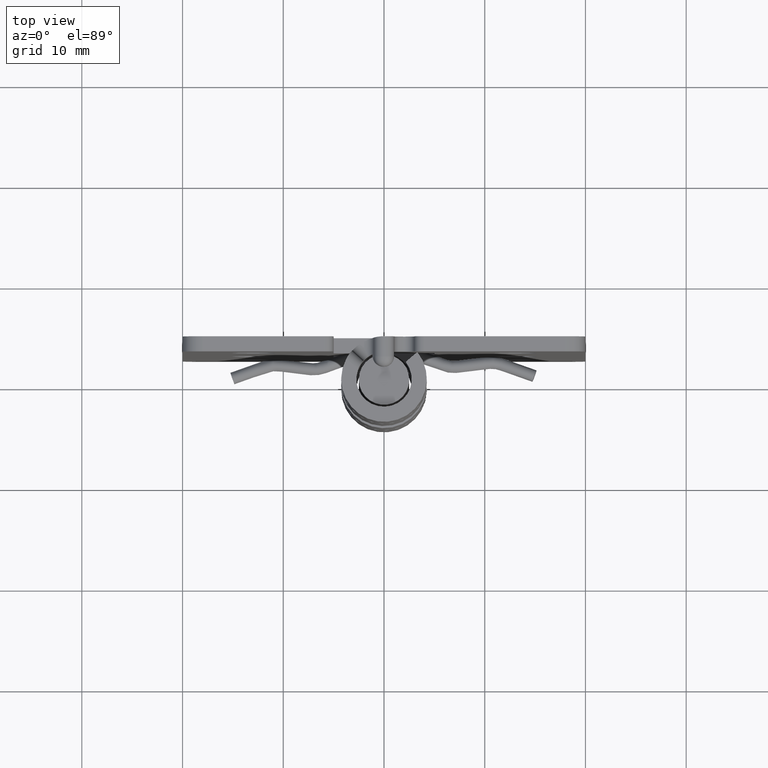
[diagram: clean part render]
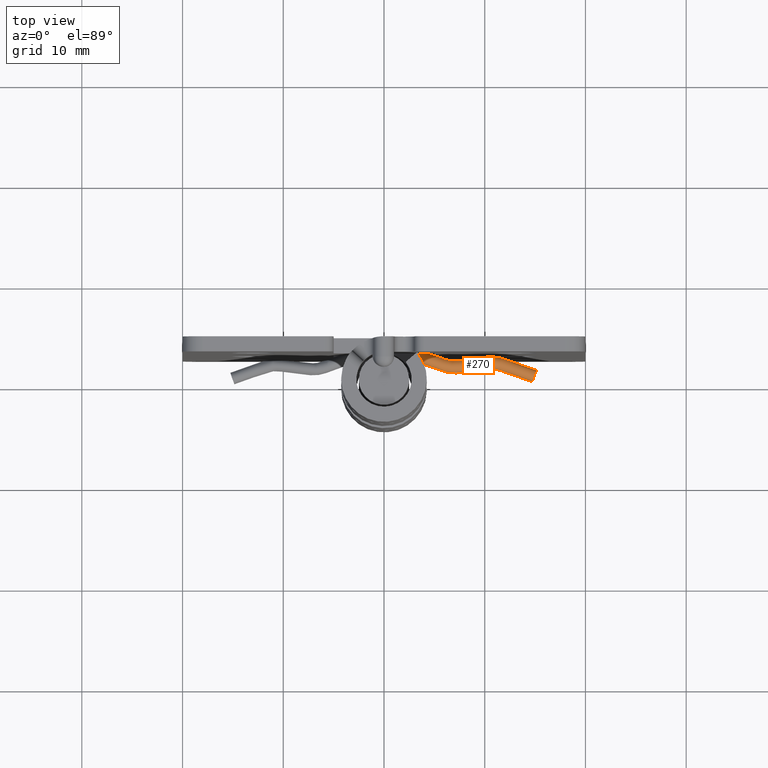
[diagram: same view with one face highlighted and labeled with its STEP entity id]
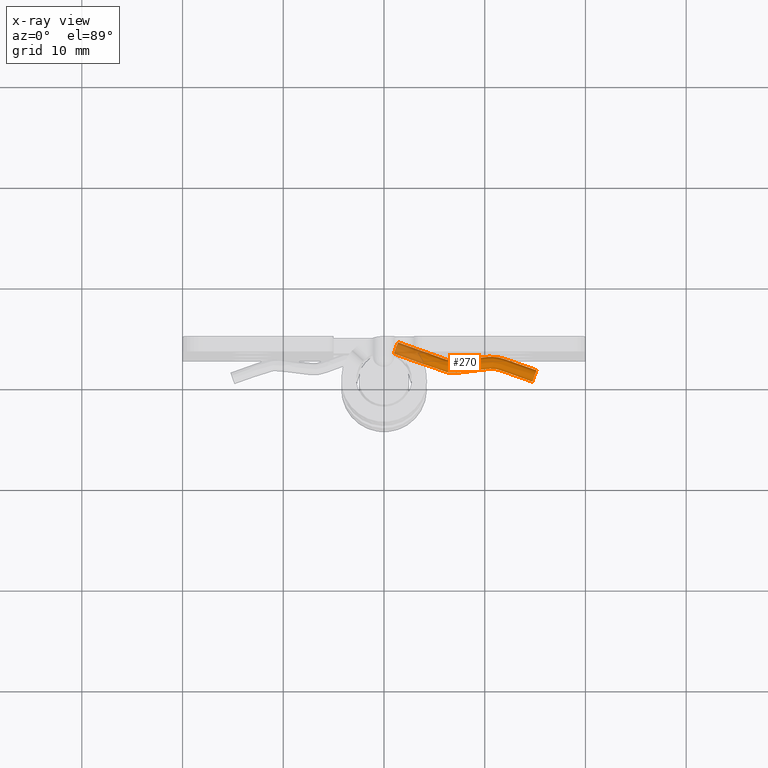
[diagram: x-ray of the same camera — body ghosted, the highlighted face saturated]
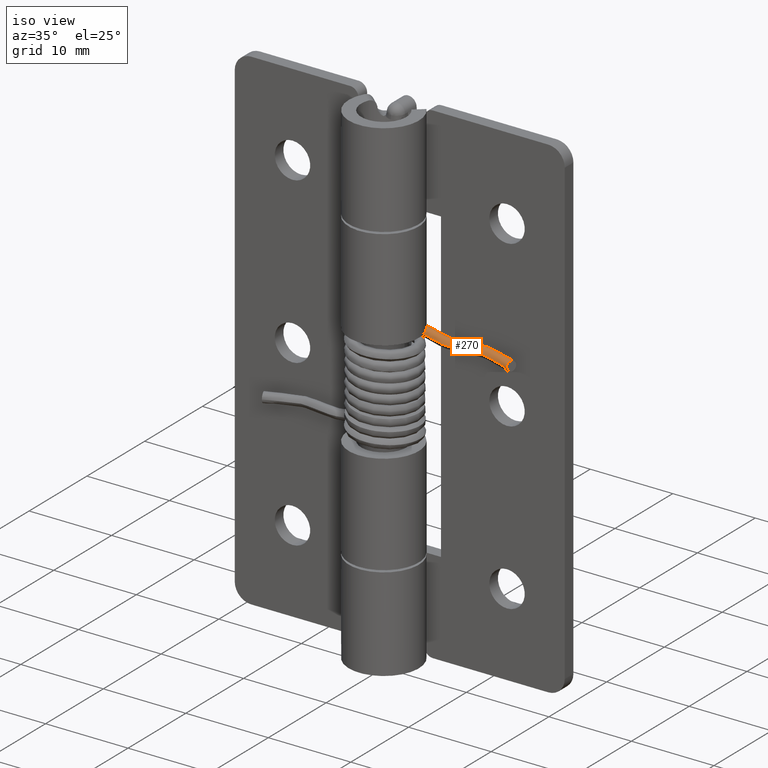
[diagram: same view with one face highlighted and labeled with its STEP entity id]
A machine part, top view. The second image highlights one B-rep face of the part: STEP entity #270.
The next image is the same camera in x-ray: the body ghosted, the highlighted face saturated — about 19% of this face is hidden behind the body in this view.
A second angle (iso view) of the same face is appended — the face is thin or edge-on in the first view.
In plain terms, the highlighted face is a freeform B-spline surface patch.
Its self-contained STEP definition (entity closure, byte-faithful):
#270=ADVANCED_FACE('',(#1127),#1126,.T.);
#1126=( BOUNDED_SURFACE() B_SPLINE_SURFACE( 3,3,((#1880,#1881,#1882,#1883,#1884,#1885,#1886,#1887,#1888,#1889,#1890,#1891,#1892,#1893,#1894,#1895,#1896,#1897,#1898,#1899,#1900,#1901,#1902,#1903,#1904,#1905,#1906,#1907,#1908,#1909,#1910,#1911,#1912,#1913,#1914,#1915,#1916,#1917,#1918,#1919,#1920,#1921,#1922,#1923),(#1924,#1925,#1926,#1927,#1928,#1929,#1930,#1931,#1932,#1933,#1934,#1935,#1936,#1937,#1938,#1939,#1940,#1941,#1942,#1943,#1944,#1945,#1946,#1947,#1948,#1949,#1950,#1951,#1952,#1953,#1954,#1955,#1956,#1957,#1958,#1959,#1960,#1961,#1962,#1963,#1964,#1965,#1966,#1967),(#1968,#1969,#1970,#1971,#1972,#1973,#1974,#1975,#1976,#1977,#1978,#1979,#1980,#1981,#1982,#1983,#1984,#1985,#1986,#1987,#1988,#1989,#1990,#1991,#1992,#1993,#1994,#1995,#1996,#1997,#1998,#1999,#2000,#2001,#2002,#2003,#2004,#2005,#2006,#2007,#2008,#2009,#2010,#2011),(#2012,#2013,#2014,#2015,#2016,#2017,#2018,#2019,#2020,#2021,#2022,#2023,#2024,#2025,#2026,#2027,#2028,#2029,#2030,#2031,#2032,#2033,#2034,#2035,#2036,#2037,#2038,#2039,#2040,#2041,#2042,#2043,#2044,#2045,#2046,#2047,#2048,#2049,#2050,#2051,#2052,#2053,#2054,#2055),(#2056,#2057,#2058,#2059,#2060,#2061,#2062,#2063,#2064,#2065,#2066,#2067,#2068,#2069,#2070,#2071,#2072,#2073,#2074,#2075,#2076,#2077,#2078,#2079,#2080,#2081,#2082,#2083,#2084,#2085,#2086,#2087,#2088,#2089,#2090,#2091,#2092,#2093,#2094,#2095,#2096,#2097,#2098,#2099),(#2100,#2101,#2102,#2103,#2104,#2105,#2106,#2107,#2108,#2109,#2110,#2111,#2112,#2113,#2114,#2115,#2116,#2117,#2118,#2119,#2120,#2121,#2122,#2123,#2124,#2125,#2126,#2127,#2128,#2129,#2130,#2131,#2132,#2133,#2134,#2135,#2136,#2137,#2138,#2139,#2140,#2141,#2142,#2143)), .UNSPECIFIED.,.F.,.F.,.F.) B_SPLINE_SURFACE_WITH_KNOTS((4,2,4),(4,2,2,2,2,2,2,2,2,2,2,2,2,2,2,2,2,2,2,2,2,4),(0.00000000000E+00,5.00000000000E-01,1.00000000000E+00),(0.00000000000E+00,1.21332214022E-01,1.81920607286E-01,2.12285392908E-01,2.42650178531E-01,2.73243687474E-01,3.03837196416E-01,3.39518774908E-01,3.57359564154E-01,3.75200353401E-01,4.46563510385E-01,4.99573046292E-01,5.26077814246E-01,5.52582582199E-01,5.89744380637E-01,6.26906179074E-01,6.61062740698E-01,6.95219302322E-01,8.25834092779E-01,9.12911854944E-01,9.78225947396E-01,1.00000000000E+00), .UNSPECIFIED. ) GEOMETRIC_REPRESENTATION_ITEM() RATIONAL_B_SPLINE_SURFACE(((1.00000000000E+00,1.00000000000E+00,1.00000000000E+00,1.00000000000E+00,1.00000000000E+00,1.00000000000E+00,1.00000000000E+00,1.00000000000E+00,1.00000000000E+00,1.00000000000E+00,1.00000000000E+00,1.00000000000E+00,1.00000000000E+00,1.00000000000E+00,1.00000000000E+00,1.00000000000E+00,1.00000000000E+00,1.00000000000E+00,1.00000000000E+00,1.00000000000E+00,1.00000000000E+00,1.00000000000E+00,1.00000000000E+00,1.00000000000E+00,1.00000000000E+00,1.00000000000E+00,1.00000000000E+00,1.00000000000E+00,1.00000000000E+00,1.00000000000E+00,1.00000000000E+00,1.00000000000E+00,1.00000000000E+00,1.00000000000E+00,1.00000000000E+00,1.00000000000E+00,1.00000000000E+00,1.00000000000E+00,1.00000000000E+00,1.00000000000E+00,1.00000000000E+00,1.00000000000E+00,1.00000000000E+00,1.00000000000E+00),(1.00000000000E+00,1.00000000000E+00,1.00000000000E+00,1.00000000000E+00,1.00000000000E+00,1.00000000000E+00,1.00000000000E+00,1.00000000000E+00,1.00000000000E+00,1.00000000000E+00,1.00000000000E+00,1.00000000000E+00,1.00000000000E+00,1.00000000000E+00,1.00000000000E+00,1.00000000000E+00,1.00000000000E+00,1.00000000000E+00,1.00000000000E+00,1.00000000000E+00,1.00000000000E+00,1.00000000000E+00,1.00000000000E+00,1.00000000000E+00,1.00000000000E+00,1.00000000000E+00,1.00000000000E+00,1.00000000000E+00,1.00000000000E+00,1.00000000000E+00,1.00000000000E+00,1.00000000000E+00,1.00000000000E+00,1.00000000000E+00,1.00000000000E+00,1.00000000000E+00,1.00000000000E+00,1.00000000000E+00,1.00000000000E+00,1.00000000000E+00,1.00000000000E+00,1.00000000000E+00,1.00000000000E+00,1.00000000000E+00),(1.00000000000E+00,1.00000000000E+00,1.00000000000E+00,1.00000000000E+00,1.00000000000E+00,1.00000000000E+00,1.00000000000E+00,1.00000000000E+00,1.00000000000E+00,1.00000000000E+00,1.00000000000E+00,1.00000000000E+00,1.00000000000E+00,1.00000000000E+00,1.00000000000E+00,1.00000000000E+00,1.00000000000E+00,1.00000000000E+00,1.00000000000E+00,1.00000000000E+00,1.00000000000E+00,1.00000000000E+00,1.00000000000E+00,1.00000000000E+00,1.00000000000E+00,1.00000000000E+00,1.00000000000E+00,1.00000000000E+00,1.00000000000E+00,1.00000000000E+00,1.00000000000E+00,1.00000000000E+00,1.00000000000E+00,1.00000000000E+00,1.00000000000E+00,1.00000000000E+00,1.00000000000E+00,1.00000000000E+00,1.00000000000E+00,1.00000000000E+00,1.00000000000E+00,1.00000000000E+00,1.00000000000E+00,1.00000000000E+00),(1.00000000000E+00,1.00000000000E+00,1.00000000000E+00,1.00000000000E+00,1.00000000000E+00,1.00000000000E+00,1.00000000000E+00,1.00000000000E+00,1.00000000000E+00,1.00000000000E+00,1.00000000000E+00,1.00000000000E+00,1.00000000000E+00,1.00000000000E+00,1.00000000000E+00,1.00000000000E+00,1.00000000000E+00,1.00000000000E+00,1.00000000000E+00,1.00000000000E+00,1.00000000000E+00,1.00000000000E+00,1.00000000000E+00,1.00000000000E+00,1.00000000000E+00,1.00000000000E+00,1.00000000000E+00,1.00000000000E+00,1.00000000000E+00,1.00000000000E+00,1.00000000000E+00,1.00000000000E+00,1.00000000000E+00,1.00000000000E+00,1.00000000000E+00,1.00000000000E+00,1.00000000000E+00,1.00000000000E+00,1.00000000000E+00,1.00000000000E+00,1.00000000000E+00,1.00000000000E+00,1.00000000000E+00,1.00000000000E+00),(1.00000000000E+00,1.00000000000E+00,1.00000000000E+00,1.00000000000E+00,1.00000000000E+00,1.00000000000E+00,1.00000000000E+00,1.00000000000E+00,1.00000000000E+00,1.00000000000E+00,1.00000000000E+00,1.00000000000E+00,1.00000000000E+00,1.00000000000E+00,1.00000000000E+00,1.00000000000E+00,1.00000000000E+00,1.00000000000E+00,1.00000000000E+00,1.00000000000E+00,1.00000000000E+00,1.00000000000E+00,1.00000000000E+00,1.00000000000E+00,1.00000000000E+00,1.00000000000E+00,1.00000000000E+00,1.00000000000E+00,1.00000000000E+00,1.00000000000E+00,1.00000000000E+00,1.00000000000E+00,1.00000000000E+00,1.00000000000E+00,1.00000000000E+00,1.00000000000E+00,1.00000000000E+00,1.00000000000E+00,1.00000000000E+00,1.00000000000E+00,1.00000000000E+00,1.00000000000E+00,1.00000000000E+00,1.00000000000E+00),(1.00000000000E+00,1.00000000000E+00,1.00000000000E+00,1.00000000000E+00,1.00000000000E+00,1.00000000000E+00,1.00000000000E+00,1.00000000000E+00,1.00000000000E+00,1.00000000000E+00,1.00000000000E+00,1.00000000000E+00,1.00000000000E+00,1.00000000000E+00,1.00000000000E+00,1.00000000000E+00,1.00000000000E+00,1.00000000000E+00,1.00000000000E+00,1.00000000000E+00,1.00000000000E+00,1.00000000000E+00,1.00000000000E+00,1.00000000000E+00,1.00000000000E+00,1.00000000000E+00,1.00000000000E+00,1.00000000000E+00,1.00000000000E+00,1.00000000000E+00,1.00000000000E+00,1.00000000000E+00,1.00000000000E+00,1.00000000000E+00,1.00000000000E+00,1.00000000000E+00,1.00000000000E+00,1.00000000000E+00,1.00000000000E+00,1.00000000000E+00,1.00000000000E+00,1.00000000000E+00,1.00000000000E+00,1.00000000000E+00))) REPRESENTATION_ITEM('') SURFACE() );
#1127=FACE_OUTER_BOUND('',#2144,.T.);
#1880=CARTESIAN_POINT('',(1.47350762657E+01,5.39879206064E+00,5.83308007899E-02));
#1881=CARTESIAN_POINT('',(1.41894686768E+01,5.38772227663E+00,-1.34759539082E-01));
#1882=CARTESIAN_POINT('',(1.36438611413E+01,5.37663570737E+00,-3.27849860047E-01));
#1883=CARTESIAN_POINT('',(1.28257997018E+01,5.36003036611E+00,-6.17361524811E-01));
#1884=CARTESIAN_POINT('',(1.25526914577E+01,5.35449960595E+00,-7.14014439359E-01));
#1885=CARTESIAN_POINT('',(1.21431001226E+01,5.34621766987E+00,-8.58968673368E-01));
#1886=CARTESIAN_POINT('',(1.20064806799E+01,5.34345432569E+00,-9.07318247585E-01));
#1887=CARTESIAN_POINT('',(1.17335579001E+01,5.33791837045E+00,-1.00390552639E+00));
#1888=CARTESIAN_POINT('',(1.15833909822E+01,5.33483427468E+00,-1.05753246010E+00));
#1889=CARTESIAN_POINT('',(1.13385503803E+01,5.32988229401E+00,-1.14321200297E+00));
#1890=CARTESIAN_POINT('',(1.12394591543E+01,5.32843948759E+00,-1.16795609075E+00));
#1891=CARTESIAN_POINT('',(1.10133156242E+01,5.32591629886E+00,-1.21100752096E+00));
#1892=CARTESIAN_POINT('',(1.08989097624E+01,5.32512302851E+00,-1.22439214566E+00));
#1893=CARTESIAN_POINT('',(1.06479380841E+01,5.32446974981E+00,-1.23542089489E+00));
#1894=CARTESIAN_POINT('',(1.05113940314E+01,5.32480003546E+00,-1.22988827961E+00));
#1895=CARTESIAN_POINT('',(1.03088886177E+01,5.32631109453E+00,-1.20425641639E+00));
#1896=CARTESIAN_POINT('',(1.02104417692E+01,5.32702226868E+00,-1.19215951717E+00));
#1897=CARTESIAN_POINT('',(1.00413526508E+01,5.32825112756E+00,-1.17118852717E+00));
#1898=CARTESIAN_POINT('',(9.95678627414E+00,5.32886398593E+00,-1.16070032631E+00));
#1899=CARTESIAN_POINT('',(9.53443966649E+00,5.33191752514E+00,-1.10831950744E+00));
#1900=CARTESIAN_POINT('',(9.19656239305E+00,5.33433726937E+00,-1.06641485392E+00));
#1901=CARTESIAN_POINT('',(8.60770529321E+00,5.33854475230E+00,-9.93382854785E-01));
#1902=CARTESIAN_POINT('',(8.35672536289E+00,5.34033258523E+00,-9.62255496279E-01));
#1903=CARTESIAN_POINT('',(7.98025549994E+00,5.34300929498E+00,-9.15564462555E-01));
#1904=CARTESIAN_POINT('',(7.85464372718E+00,5.34390154414E+00,-8.99985676321E-01));
#1905=CARTESIAN_POINT('',(7.60350922970E+00,5.34568418897E+00,-8.68839147885E-01));
#1906=CARTESIAN_POINT('',(7.49101433980E+00,5.34650542015E+00,-8.54481034486E-01));
#1907=CARTESIAN_POINT('',(7.15886180799E+00,5.34880482702E+00,-8.14261929882E-01));
#1908=CARTESIAN_POINT('',(6.92885803509E+00,5.34925801746E+00,-8.06329508177E-01));
#1909=CARTESIAN_POINT('',(6.50709900271E+00,5.34785386108E+00,-8.30895954714E-01));
#1910=CARTESIAN_POINT('',(6.29804551103E+00,5.34609193055E+00,-8.61735639871E-01));
#1911=CARTESIAN_POINT('',(5.90613855529E+00,5.34075239578E+00,-9.54989997390E-01));
#1912=CARTESIAN_POINT('',(5.71705026055E+00,5.33690416217E+00,-1.02206614866E+00));
#1913=CARTESIAN_POINT('',(5.41052944898E+00,5.33053496074E+00,-1.13254141482E+00));
#1914=CARTESIAN_POINT('',(5.25686966524E+00,5.32732389853E+00,-1.18792299045E+00));
#1915=CARTESIAN_POINT('',(4.51745990652E+00,5.31161768229E+00,-1.45441872846E+00));
#1916=CARTESIAN_POINT('',(3.93132875294E+00,5.29788614329E+00,-1.66567027403E+00));
#1917=CARTESIAN_POINT('',(2.95450336078E+00,5.27089713510E+00,-2.01773460741E+00));
#1918=CARTESIAN_POINT('',(2.56381885488E+00,5.25892226870E+00,-2.15854388738E+00));
#1919=CARTESIAN_POINT('',(1.88023171842E+00,5.23419336538E+00,-2.40492021157E+00));
#1920=CARTESIAN_POINT('',(1.58726373179E+00,5.22392932319E+00,-2.51051081122E+00));
#1921=CARTESIAN_POINT('',(1.19673238177E+00,5.20392783043E+00,-2.65126489123E+00));
#1922=CARTESIAN_POINT('',(1.09910427526E+00,5.19811859717E+00,-2.68645170611E+00));
#1923=CARTESIAN_POINT('',(1.00152533158E+00,5.19191732194E+00,-2.72162080187E+00));
#1924=CARTESIAN_POINT('',(1.47256455854E+01,5.71274121315E+00,5.17706244082E-02));
#1925=CARTESIAN_POINT('',(1.41800373065E+01,5.70167131785E+00,-1.41319959659E-01));
#1926=CARTESIAN_POINT('',(1.36344171018E+01,5.69058435967E+00,-3.34414764241E-01));
#1927=CARTESIAN_POINT('',(1.28163709781E+01,5.67397959191E+00,-6.23921008778E-01));
#1928=CARTESIAN_POINT('',(1.25432768433E+01,5.66844935943E+00,-7.20568930061E-01));
#1929=CARTESIAN_POINT('',(1.21336897291E+01,5.66016758107E+00,-8.65521670243E-01));
#1930=CARTESIAN_POINT('',(1.19970629063E+01,5.65740396125E+00,-9.13873856321E-01));
#1931=CARTESIAN_POINT('',(1.17241192976E+01,5.65186722649E+00,-1.01046850644E+00));
#1932=CARTESIAN_POINT('',(1.15736492477E+01,5.64876893961E+00,-1.06433646848E+00));
#1933=CARTESIAN_POINT('',(1.13293457854E+01,5.64384276802E+00,-1.14955741033E+00));
#1934=CARTESIAN_POINT('',(1.12310949177E+01,5.64243621846E+00,-1.17366947450E+00));
#1935=CARTESIAN_POINT('',(1.10061675285E+01,5.63995562107E+00,-1.21598336685E+00));
#1936=CARTESIAN_POINT('',(1.08924120376E+01,5.63918156972E+00,-1.22904033191E+00));
#1937=CARTESIAN_POINT('',(1.06429260568E+01,5.63856423681E+00,-1.23946120613E+00));
#1938=CARTESIAN_POINT('',(1.05072263392E+01,5.63891009940E+00,-1.23366679962E+00));
#1939=CARTESIAN_POINT('',(1.03059751822E+01,5.64043770483E+00,-1.20775103917E+00));
#1940=CARTESIAN_POINT('',(1.02071743900E+01,5.64114423540E+00,-1.19573139127E+00));
#1941=CARTESIAN_POINT('',(1.00380767453E+01,5.64237301750E+00,-1.17475934382E+00));
#1942=CARTESIAN_POINT('',(9.95350644404E+00,5.64298584044E+00,-1.16427065620E+00));
#1943=CARTESIAN_POINT('',(9.53114192836E+00,5.64603921771E+00,-1.11188761633E+00));
#1944=CARTESIAN_POINT('',(9.19325699218E+00,5.64845889189E+00,-1.06998201245E+00));
#1945=CARTESIAN_POINT('',(8.60439163840E+00,5.65266629947E+00,-9.96948989627E-01));
#1946=CARTESIAN_POINT('',(8.35340714519E+00,5.65445409065E+00,-9.65821065216E-01));
#1947=CARTESIAN_POINT('',(7.97693302129E+00,5.65713076135E+00,-9.19129503035E-01));
#1948=CARTESIAN_POINT('',(7.85132002698E+00,5.65802299931E+00,-9.03550565300E-01));
#1949=CARTESIAN_POINT('',(7.60018348788E+00,5.65980562540E+00,-8.72403783657E-01));
#1950=CARTESIAN_POINT('',(7.48800098798E+00,5.66063099171E+00,-8.57973083028E-01));
#1951=CARTESIAN_POINT('',(7.15509461345E+00,5.66292043392E+00,-8.17927909986E-01));
#1952=CARTESIAN_POINT('',(6.92385066819E+00,5.66335268603E+00,-8.10361916907E-01));
#1953=CARTESIAN_POINT('',(6.50049843571E+00,5.66190960789E+00,-8.35609263273E-01));
#1954=CARTESIAN_POINT('',(6.29067790475E+00,5.66012417582E+00,-8.66859855280E-01));
#1955=CARTESIAN_POINT('',(5.89738236259E+00,5.65473274718E+00,-9.61018470673E-01));
#1956=CARTESIAN_POINT('',(5.70754887524E+00,5.65084967890E+00,-1.02869794290E+00));
#1957=CARTESIAN_POINT('',(5.40098680565E+00,5.64447891163E+00,-1.13918807915E+00));
#1958=CARTESIAN_POINT('',(5.24728967213E+00,5.64126643360E+00,-1.19458311626E+00));
#1959=CARTESIAN_POINT('',(4.50756372762E+00,5.62554807663E+00,-1.46119281296E+00));
#1960=CARTESIAN_POINT('',(3.92062566012E+00,5.61178443014E+00,-1.67273518391E+00));
#1961=CARTESIAN_POINT('',(2.94262836087E+00,5.58474298528E+00,-2.02522189235E+00));
#1962=CARTESIAN_POINT('',(2.55093827888E+00,5.57272059962E+00,-2.16639359890E+00));
#1963=CARTESIAN_POINT('',(1.86581227367E+00,5.54790977147E+00,-2.41332455732E+00));
#1964=CARTESIAN_POINT('',(1.57307040752E+00,5.53768043746E+00,-2.51883365934E+00));
#1965=CARTESIAN_POINT('',(1.17778236769E+00,5.51735692829E+00,-2.66130213051E+00));
#1966=CARTESIAN_POINT('',(1.07840411902E+00,5.51141466885E+00,-2.69711972612E+00));
#1967=CARTESIAN_POINT('',(9.80252448246E-01,5.50516683110E+00,-2.73249524238E+00));
#1968=CARTESIAN_POINT('',(1.48153482918E+01,5.99573470966E+00,-2.22597661972E-01));
#1969=CARTESIAN_POINT('',(1.42697393899E+01,5.98466477181E+00,-4.15688466482E-01));
#1970=CARTESIAN_POINT('',(1.37241077662E+01,5.97357754133E+00,-6.08787312267E-01));
#1971=CARTESIAN_POINT('',(1.29060754480E+01,5.95697313454E+00,-8.98288671017E-01));
#1972=CARTESIAN_POINT('',(1.26329940313E+01,5.95144323401E+00,-9.94932091376E-01));
#1973=CARTESIAN_POINT('',(1.22234107220E+01,5.94316155483E+00,-1.13988348502E+00));
#1974=CARTESIAN_POINT('',(1.20867772466E+01,5.94039776172E+00,-1.18823802543E+00));
#1975=CARTESIAN_POINT('',(1.18138148629E+01,5.93486053643E+00,-1.28483932005E+00));
#1976=CARTESIAN_POINT('',(1.16697454894E+01,5.93189057889E+00,-1.33648446237E+00));
#1977=CARTESIAN_POINT('',(1.14125280940E+01,5.92670509344E+00,-1.42619056651E+00));
#1978=CARTESIAN_POINT('',(1.12954952411E+01,5.92497878118E+00,-1.45581159832E+00));
#1979=CARTESIAN_POINT('',(1.10448089242E+01,5.92220833790E+00,-1.50307590552E+00));
#1980=CARTESIAN_POINT('',(1.09180252397E+01,5.92134265035E+00,-1.51767949645E+00));
#1981=CARTESIAN_POINT('',(1.06400241462E+01,5.92064816060E+00,-1.52940304633E+00));
#1982=CARTESIAN_POINT('',(1.04887383299E+01,5.92103020871E+00,-1.52300127685E+00));
#1983=CARTESIAN_POINT('',(1.02645178232E+01,5.92272683103E+00,-1.49421835948E+00));
#1984=CARTESIAN_POINT('',(1.01720327316E+01,5.92338703995E+00,-1.48298374427E+00));
#1985=CARTESIAN_POINT('',(1.00029274260E+01,5.92461583509E+00,-1.46201074668E+00));
#1986=CARTESIAN_POINT('',(9.91835359839E+00,5.92522866396E+00,-1.45152162172E+00));
#1987=CARTESIAN_POINT('',(9.49597299208E+00,5.92828206800E+00,-1.39913658623E+00));
#1988=CARTESIAN_POINT('',(9.15808117083E+00,5.93070175297E+00,-1.35723012844E+00));
#1989=CARTESIAN_POINT('',(8.56920840075E+00,5.93490917225E+00,-1.28419618582E+00));
#1990=CARTESIAN_POINT('',(8.31821980771E+00,5.93669696982E+00,-1.25306775294E+00));
#1991=CARTESIAN_POINT('',(7.94174185529E+00,5.93937364642E+00,-1.20637571593E+00));
#1992=CARTESIAN_POINT('',(7.81612776339E+00,5.94026588607E+00,-1.19079664207E+00));
#1993=CARTESIAN_POINT('',(7.56498938988E+00,5.94204851497E+00,-1.15964963292E+00));
#1994=CARTESIAN_POINT('',(7.44690499727E+00,5.94291762294E+00,-1.14445378650E+00));
#1995=CARTESIAN_POINT('',(7.12817233350E+00,5.94510199893E+00,-1.10624616942E+00));
#1996=CARTESIAN_POINT('',(6.92081593915E+00,5.94543963339E+00,-1.10033564953E+00));
#1997=CARTESIAN_POINT('',(6.52950043874E+00,5.94408361309E+00,-1.12405984095E+00));
#1998=CARTESIAN_POINT('',(6.33562435732E+00,5.94242287480E+00,-1.15312802826E+00));
#1999=CARTESIAN_POINT('',(5.97205863076E+00,5.93741730164E+00,-1.24054653571E+00));
#2000=CARTESIAN_POINT('',(5.79873749483E+00,5.93385975576E+00,-1.30255882658E+00));
#2001=CARTESIAN_POINT('',(5.49213823266E+00,5.92748799806E+00,-1.41306236765E+00));
#2002=CARTESIAN_POINT('',(5.33840742972E+00,5.92427462495E+00,-1.46846953979E+00));
#2003=CARTESIAN_POINT('',(4.59839645415E+00,5.90854855085E+00,-1.73518196649E+00));
#2004=CARTESIAN_POINT('',(4.01073097013E+00,5.89476419717E+00,-1.94698651061E+00));
#2005=CARTESIAN_POINT('',(3.03167716814E+00,5.86768744676E+00,-2.29985400044E+00));
#2006=CARTESIAN_POINT('',(2.63908051206E+00,5.85563249118E+00,-2.44135245157E+00));
#2007=CARTESIAN_POINT('',(1.95256706125E+00,5.83076352581E+00,-2.68878346877E+00));
#2008=CARTESIAN_POINT('',(1.66002927012E+00,5.82056316303E+00,-2.79421901871E+00));
#2009=CARTESIAN_POINT('',(1.26045197358E+00,5.79999796706E+00,-2.93823341029E+00));
#2010=CARTESIAN_POINT('',(1.15949546633E+00,5.79395336934E+00,-2.97461983689E+00));
#2011=CARTESIAN_POINT('',(1.06082724845E+00,5.78766971770E+00,-3.01018152543E+00));
#2012=CARTESIAN_POINT('',(1.50313889407E+01,5.98989630154E+00,-8.12577769298E-01));
#2013=CARTESIAN_POINT('',(1.44857800497E+01,5.97882649277E+00,-1.00566856998E+00));
#2014=CARTESIAN_POINT('',(1.39401486636E+01,5.96773944159E+00,-1.19876733167E+00));
#2015=CARTESIAN_POINT('',(1.31221160606E+01,5.95113468126E+00,-1.48826879122E+00));
#2016=CARTESIAN_POINT('',(1.28490343815E+01,5.94560445506E+00,-1.58491230444E+00));
#2017=CARTESIAN_POINT('',(1.24394509937E+01,5.93732267845E+00,-1.72986372587E+00));
#2018=CARTESIAN_POINT('',(1.23028176555E+01,5.93455905568E+00,-1.77821821769E+00));
#2019=CARTESIAN_POINT('',(1.20298556592E+01,5.92902231118E+00,-1.87481937524E+00));
#2020=CARTESIAN_POINT('',(1.19004621455E+01,5.92636282198E+00,-1.92109638750E+00));
#2021=CARTESIAN_POINT('',(1.16137838121E+01,5.92055570968E+00,-2.02157871738E+00));
#2022=CARTESIAN_POINT('',(1.14537847712E+01,5.91805399985E+00,-2.06457328964E+00));
#2023=CARTESIAN_POINT('',(1.11440443912E+01,5.91456125150E+00,-2.12419438750E+00));
#2024=CARTESIAN_POINT('',(1.09873221450E+01,5.91345569651E+00,-2.14285300101E+00));
#2025=CARTESIAN_POINT('',(1.06436693893E+01,5.91251971351E+00,-2.15865576705E+00));
#2026=CARTESIAN_POINT('',(1.04564344440E+01,5.91295014869E+00,-2.15144250995E+00));
#2027=CARTESIAN_POINT('',(1.01792155312E+01,5.91498520138E+00,-2.11692496893E+00));
#2028=CARTESIAN_POINT('',(1.01013211340E+01,5.91555287590E+00,-2.10726146442E+00));
#2029=CARTESIAN_POINT('',(9.93221604109E+00,5.91678185326E+00,-2.08628849321E+00));
#2030=CARTESIAN_POINT('',(9.84764231132E+00,5.91739476601E+00,-2.07579938038E+00));
#2031=CARTESIAN_POINT('',(9.42526215161E+00,5.92044855280E+00,-2.02341440028E+00));
#2032=CARTESIAN_POINT('',(9.08737052144E+00,5.92286840157E+00,-1.98150796619E+00));
#2033=CARTESIAN_POINT('',(8.49849795719E+00,5.92707599728E+00,-1.90847404911E+00));
#2034=CARTESIAN_POINT('',(8.24750947794E+00,5.92886389238E+00,-1.87734563033E+00));
#2035=CARTESIAN_POINT('',(7.87103163176E+00,5.93154066007E+00,-1.83065360650E+00));
#2036=CARTESIAN_POINT('',(7.74541757032E+00,5.93243292583E+00,-1.81507453642E+00));
#2037=CARTESIAN_POINT('',(7.49427924772E+00,5.93421559837E+00,-1.78392753358E+00));
#2038=CARTESIAN_POINT('',(7.36259687674E+00,5.93517258646E+00,-1.76719496250E+00));
#2039=CARTESIAN_POINT('',(7.07652772767E+00,5.93714594129E+00,-1.73267869130E+00));
#2040=CARTESIAN_POINT('',(6.92415990752E+00,5.93731746938E+00,-1.72967427934E+00));
#2041=CARTESIAN_POINT('',(6.60645209434E+00,5.93623065810E+00,-1.74868856021E+00));
#2042=CARTESIAN_POINT('',(6.44915825606E+00,5.93489101756E+00,-1.77213769833E+00));
#2043=CARTESIAN_POINT('',(6.15372005936E+00,5.93083739728E+00,-1.84293197552E+00));
#2044=CARTESIAN_POINT('',(6.01818580222E+00,5.92806506519E+00,-1.89128035496E+00));
#2045=CARTESIAN_POINT('',(5.71158730152E+00,5.92169426206E+00,-2.00178362160E+00));
#2046=CARTESIAN_POINT('',(5.55785718793E+00,5.91848175305E+00,-2.05719054528E+00));
#2047=CARTESIAN_POINT('',(4.81785204518E+00,5.90276299709E+00,-2.32390086973E+00));
#2048=CARTESIAN_POINT('',(4.23020142422E+00,5.88899734105E+00,-2.53570005696E+00));
#2049=CARTESIAN_POINT('',(3.25116909332E+00,5.86194785735E+00,-2.88855980825E+00));
#2050=CARTESIAN_POINT('',(2.85859081083E+00,5.84991634698E+00,-3.03005163722E+00));
#2051=CARTESIAN_POINT('',(2.17210529503E+00,5.82508343744E+00,-3.27747258617E+00));
#2052=CARTESIAN_POINT('',(1.87956384883E+00,5.81487734117E+00,-3.38290945346E+00));
#2053=CARTESIAN_POINT('',(1.48007153649E+00,5.79442491612E+00,-3.52689321530E+00));
#2054=CARTESIAN_POINT('',(1.37914607575E+00,5.78842142817E+00,-3.56326845222E+00));
#2055=CARTESIAN_POINT('',(1.28048786943E+00,5.78215216605E+00,-3.59882653242E+00));
#2056=CARTESIAN_POINT('',(1.51382528317E+01,5.70159067501E+00,-1.07500838047E+00));
#2057=CARTESIAN_POINT('',(1.45926445734E+01,5.69052102624E+00,-1.26809895723E+00));
#2058=CARTESIAN_POINT('',(1.40470248225E+01,5.67943441048E+00,-1.46119360120E+00));
#2059=CARTESIAN_POINT('',(1.32289781548E+01,5.66282896751E+00,-1.75070003825E+00));
#2060=CARTESIAN_POINT('',(1.29558835189E+01,5.65729811304E+00,-1.84734813689E+00));
#2061=CARTESIAN_POINT('',(1.25462962548E+01,5.64901614861E+00,-1.99230093013E+00));
#2062=CARTESIAN_POINT('',(1.24096696941E+01,5.64625285412E+00,-2.04065302343E+00));
#2063=CARTESIAN_POINT('',(1.21367268253E+01,5.64071703760E+00,-2.13724741174E+00));
#2064=CARTESIAN_POINT('',(1.20142856030E+01,5.63821170157E+00,-2.18086300057E+00));
#2065=CARTESIAN_POINT('',(1.17137158936E+01,5.63209831015E+00,-2.28666501756E+00));
#2066=CARTESIAN_POINT('',(1.15334056517E+01,5.62921086031E+00,-2.33631866257E+00));
#2067=CARTESIAN_POINT('',(1.11956933098E+01,5.62535076184E+00,-2.40223228667E+00));
#2068=CARTESIAN_POINT('',(1.10247593779E+01,5.62411859745E+00,-2.42303377441E+00));
#2069=CARTESIAN_POINT('',(1.06498879583E+01,5.62304004641E+00,-2.44124537760E+00));
#2070=CARTESIAN_POINT('',(1.04455304618E+01,5.62347832147E+00,-2.43390114392E+00));
#2071=CARTESIAN_POINT('',(1.01430598051E+01,5.62565228131E+00,-2.39703305904E+00));
#2072=CARTESIAN_POINT('',(1.00721251865E+01,5.62618208419E+00,-2.38801401157E+00));
#2073=CARTESIAN_POINT('',(9.90302794795E+00,5.62741121431E+00,-2.36704201449E+00));
#2074=CARTESIAN_POINT('',(9.81845783360E+00,5.62802419746E+00,-2.35655335006E+00));
#2075=CARTESIAN_POINT('',(9.39609417087E+00,5.63107830572E+00,-2.30417041596E+00));
#2076=CARTESIAN_POINT('',(9.05820959963E+00,5.63349829274E+00,-2.26226485734E+00));
#2077=CARTESIAN_POINT('',(8.46934463895E+00,5.63770603727E+00,-2.18923188328E+00));
#2078=CARTESIAN_POINT('',(8.21836036305E+00,5.63949401473E+00,-2.15810398582E+00));
#2079=CARTESIAN_POINT('',(7.84188644208E+00,5.64217085938E+00,-2.11141244880E+00));
#2080=CARTESIAN_POINT('',(7.71627350594E+00,5.64306314722E+00,-2.09583351829E+00));
#2081=CARTESIAN_POINT('',(7.46513706407E+00,5.64484585666E+00,-2.06468674870E+00));
#2082=CARTESIAN_POINT('',(7.32698433849E+00,5.64583906164E+00,-2.04732112017E+00));
#2083=CARTESIAN_POINT('',(7.05646068181E+00,5.64772548312E+00,-2.01432589843E+00));
#2084=CARTESIAN_POINT('',(6.93023717734E+00,5.64784049544E+00,-2.01231016266E+00));
#2085=CARTESIAN_POINT('',(6.64746527212E+00,5.64691156864E+00,-2.02856224247E+00));
#2086=CARTESIAN_POINT('',(6.50751167907E+00,5.64573938809E+00,-2.04908124104E+00));
#2087=CARTESIAN_POINT('',(6.24433013456E+00,5.64216605554E+00,-2.11148991538E+00));
#2088=CARTESIAN_POINT('',(6.12666426973E+00,5.63978263513E+00,-2.15307323908E+00));
#2089=CARTESIAN_POINT('',(5.82010365442E+00,5.63341369094E+00,-2.26356285117E+00));
#2090=CARTESIAN_POINT('',(5.66640783749E+00,5.63020286324E+00,-2.31895741377E+00));
#2091=CARTESIAN_POINT('',(4.92669303285E+00,5.61449848288E+00,-2.58556309547E+00));
#2092=CARTESIAN_POINT('',(4.33978335169E+00,5.60077054625E+00,-2.79709523550E+00));
#2093=CARTESIAN_POINT('',(3.36182705920E+00,5.57378117699E+00,-3.14956716441E+00));
#2094=CARTESIAN_POINT('',(2.97017206819E+00,5.56180356837E+00,-3.29072622358E+00));
#2095=CARTESIAN_POINT('',(2.28509941492E+00,5.53706160176E+00,-3.53763795306E+00));
#2096=CARTESIAN_POINT('',(1.99235056809E+00,5.52682131760E+00,-3.64314957103E+00));
#2097=CARTESIAN_POINT('',(1.59722483613E+00,5.50671318501E+00,-3.78555954372E+00));
#2098=CARTESIAN_POINT('',(1.49790588255E+00,5.50084943218E+00,-3.82135576838E+00));
#2099=CARTESIAN_POINT('',(1.39977333182E+00,5.49462908368E+00,-3.85672439345E+00));
#2100=CARTESIAN_POINT('',(1.51476835119E+01,5.38764152250E+00,-1.06844820409E+00));
#2101=CARTESIAN_POINT('',(1.46020759437E+01,5.37657198502E+00,-1.26153853665E+00));
#2102=CARTESIAN_POINT('',(1.40564688620E+01,5.36548575818E+00,-1.45462869701E+00));
#2103=CARTESIAN_POINT('',(1.32384068786E+01,5.34887974171E+00,-1.74414055428E+00));
#2104=CARTESIAN_POINT('',(1.29652981334E+01,5.34334835957E+00,-1.84079364619E+00));
#2105=CARTESIAN_POINT('',(1.25557066483E+01,5.33506623741E+00,-1.98574793325E+00));
#2106=CARTESIAN_POINT('',(1.24190874678E+01,5.33230321856E+00,-2.03409741469E+00));
#2107=CARTESIAN_POINT('',(1.21461654278E+01,5.32676818156E+00,-2.13068443168E+00));
#2108=CARTESIAN_POINT('',(1.20240273375E+01,5.32427703665E+00,-2.17405899220E+00));
#2109=CARTESIAN_POINT('',(1.17229204885E+01,5.31813783615E+00,-2.28031961021E+00));
#2110=CARTESIAN_POINT('',(1.15417698882E+01,5.31521412944E+00,-2.33060527882E+00));
#2111=CARTESIAN_POINT('',(1.12028414055E+01,5.31131143964E+00,-2.39725644078E+00));
#2112=CARTESIAN_POINT('',(1.10312571027E+01,5.31006005623E+00,-2.41838558816E+00));
#2113=CARTESIAN_POINT('',(1.06548999857E+01,5.30894555941E+00,-2.43720506636E+00));
#2114=CARTESIAN_POINT('',(1.04496981540E+01,5.30936825754E+00,-2.43012262391E+00));
#2115=CARTESIAN_POINT('',(1.01459732406E+01,5.31152567102E+00,-2.39353843625E+00));
#2116=CARTESIAN_POINT('',(1.00753925657E+01,5.31206011747E+00,-2.38444213747E+00));
#2117=CARTESIAN_POINT('',(9.90630385338E+00,5.31328932437E+00,-2.36347119784E+00));
#2118=CARTESIAN_POINT('',(9.82173766370E+00,5.31390234294E+00,-2.35298302016E+00));
#2119=CARTESIAN_POINT('',(9.39939190900E+00,5.31695661315E+00,-2.30060230708E+00));
#2120=CARTESIAN_POINT('',(9.06151500050E+00,5.31937667021E+00,-2.25869769882E+00));
#2121=CARTESIAN_POINT('',(8.47265829376E+00,5.32358449010E+00,-2.18566574844E+00));
#2122=CARTESIAN_POINT('',(8.22167858075E+00,5.32537250931E+00,-2.15453841688E+00));
#2123=CARTESIAN_POINT('',(7.84520892073E+00,5.32804939301E+00,-2.10784740832E+00));
#2124=CARTESIAN_POINT('',(7.71959720614E+00,5.32894169205E+00,-2.09226862931E+00));
#2125=CARTESIAN_POINT('',(7.46846280589E+00,5.33072442023E+00,-2.06112211293E+00));
#2126=CARTESIAN_POINT('',(7.32999769031E+00,5.33171349008E+00,-2.04382907163E+00));
#2127=CARTESIAN_POINT('',(7.06022787635E+00,5.33360987622E+00,-2.01065991832E+00));
#2128=CARTESIAN_POINT('',(6.93524454424E+00,5.33374582687E+00,-2.00827775393E+00));
#2129=CARTESIAN_POINT('',(6.65406583912E+00,5.33285582183E+00,-2.02384893391E+00));
#2130=CARTESIAN_POINT('',(6.51487928535E+00,5.33170714282E+00,-2.04395702563E+00));
#2131=CARTESIAN_POINT('',(6.25308632726E+00,5.32818570414E+00,-2.10546144210E+00));
#2132=CARTESIAN_POINT('',(6.13616565504E+00,5.32583711840E+00,-2.14644144484E+00));
#2133=CARTESIAN_POINT('',(5.82964629776E+00,5.31946974005E+00,-2.25691618685E+00));
#2134=CARTESIAN_POINT('',(5.67598783060E+00,5.31626032817E+00,-2.31229728795E+00));
#2135=CARTESIAN_POINT('',(4.93658921175E+00,5.30056808853E+00,-2.57878901097E+00));
#2136=CARTESIAN_POINT('',(4.35048644451E+00,5.28687225940E+00,-2.79003032563E+00));
#2137=CARTESIAN_POINT('',(3.37370205911E+00,5.25993532680E+00,-3.14207987947E+00));
#2138=CARTESIAN_POINT('',(2.98305264419E+00,5.24800523744E+00,-3.28287651207E+00));
#2139=CARTESIAN_POINT('',(2.29951885968E+00,5.22334519567E+00,-3.52923360732E+00));
#2140=CARTESIAN_POINT('',(2.00654389237E+00,5.21307020333E+00,-3.63482672292E+00));
#2141=CARTESIAN_POINT('',(1.61617485022E+00,5.19328408715E+00,-3.77552230444E+00));
#2142=CARTESIAN_POINT('',(1.51860603948E+00,5.18755335240E+00,-3.81068774812E+00));
#2143=CARTESIAN_POINT('',(1.42104621515E+00,5.18137957452E+00,-3.84584995294E+00));
#2144=EDGE_LOOP('',(#6198,#6199,#6200,#6201));
#6198=ORIENTED_EDGE('',*,*,#6435,.T.);
#6199=ORIENTED_EDGE('',*,*,#6438,.F.);
#6200=ORIENTED_EDGE('',*,*,#6437,.F.);
#6201=ORIENTED_EDGE('',*,*,#6439,.T.);
#6435=EDGE_CURVE('',#7928,#7920,#7929,.T.);
#6437=EDGE_CURVE('',#7935,#7921,#7942,.T.);
#6438=EDGE_CURVE('',#7921,#7920,#7948,.T.);
#6439=EDGE_CURVE('',#7935,#7928,#7954,.T.);
#7920=VERTEX_POINT('',#8956);
#7921=VERTEX_POINT('',#8957);
#7928=VERTEX_POINT('',#8964);
#7929=(BOUNDED_CURVE() B_SPLINE_CURVE(3,(#8965,#8966,#8967,#8968,#8969,#8970,#8971,#8972,#8973,#8974,#8975,#8976,#8977,#8978,#8979,#8980,#8981,#8982,#8983,#8984,#8985,#8986,#8987,#8988,#8989,#8990,#8991,#8992,#8993,#8994,#8995,#8996,#8997,#8998,#8999,#9000,#9001,#9002,#9003,#9004,#9005,#9006,#9007,#9008),.UNSPECIFIED.,.F.,.F.) B_SPLINE_CURVE_WITH_KNOTS((4,2,2,2,2,2,2,2,2,2,2,2,2,2,2,2,2,2,2,2,2,4),(0.00000000000E+00,1.21332214022E-01,1.81920607286E-01,2.12285392908E-01,2.42650178531E-01,2.73243687474E-01,3.03837196416E-01,3.39518774908E-01,3.57359564154E-01,3.75200353401E-01,4.46563510385E-01,4.99573046292E-01,5.26077814246E-01,5.52582582199E-01,5.89744380637E-01,6.26906179074E-01,6.61062740698E-01,6.95219302322E-01,8.25834092779E-01,9.12911854944E-01,9.78225947396E-01,1.00000000000E+00),.UNSPECIFIED.) CURVE() GEOMETRIC_REPRESENTATION_ITEM() RATIONAL_B_SPLINE_CURVE((1.00000000000E+00,1.00000000000E+00,1.00000000000E+00,1.00000000000E+00,1.00000000000E+00,1.00000000000E+00,1.00000000000E+00,1.00000000000E+00,1.00000000000E+00,1.00000000000E+00,1.00000000000E+00,1.00000000000E+00,1.00000000000E+00,1.00000000000E+00,1.00000000000E+00,1.00000000000E+00,1.00000000000E+00,1.00000000000E+00,1.00000000000E+00,1.00000000000E+00,1.00000000000E+00,1.00000000000E+00,1.00000000000E+00,1.00000000000E+00,1.00000000000E+00,1.00000000000E+00,1.00000000000E+00,1.00000000000E+00,1.00000000000E+00,1.00000000000E+00,1.00000000000E+00,1.00000000000E+00,1.00000000000E+00,1.00000000000E+00,1.00000000000E+00,1.00000000000E+00,1.00000000000E+00,1.00000000000E+00,1.00000000000E+00,1.00000000000E+00,1.00000000000E+00,1.00000000000E+00,1.00000000000E+00,1.00000000000E+00)) REPRESENTATION_ITEM('') );
#7935=VERTEX_POINT('',#9009);
#7942=(BOUNDED_CURVE() B_SPLINE_CURVE(3,(#9016,#9017,#9018,#9019,#9020,#9021,#9022,#9023,#9024,#9025,#9026,#9027,#9028,#9029,#9030,#9031,#9032,#9033,#9034,#9035,#9036,#9037,#9038,#9039,#9040,#9041,#9042,#9043,#9044,#9045,#9046,#9047,#9048,#9049,#9050,#9051,#9052,#9053,#9054,#9055,#9056,#9057,#9058,#9059),.UNSPECIFIED.,.F.,.F.) B_SPLINE_CURVE_WITH_KNOTS((4,2,2,2,2,2,2,2,2,2,2,2,2,2,2,2,2,2,2,2,2,4),(0.00000000000E+00,1.21332214022E-01,1.81920607286E-01,2.12285392908E-01,2.42650178531E-01,2.73243687474E-01,3.03837196416E-01,3.39518774908E-01,3.57359564154E-01,3.75200353401E-01,4.46563510385E-01,4.99573046292E-01,5.26077814246E-01,5.52582582199E-01,5.89744380637E-01,6.26906179074E-01,6.61062740698E-01,6.95219302322E-01,8.25834092779E-01,9.12911854944E-01,9.78225947396E-01,1.00000000000E+00),.UNSPECIFIED.) CURVE() GEOMETRIC_REPRESENTATION_ITEM() RATIONAL_B_SPLINE_CURVE((1.00000000000E+00,1.00000000000E+00,1.00000000000E+00,1.00000000000E+00,1.00000000000E+00,1.00000000000E+00,1.00000000000E+00,1.00000000000E+00,1.00000000000E+00,1.00000000000E+00,1.00000000000E+00,1.00000000000E+00,1.00000000000E+00,1.00000000000E+00,1.00000000000E+00,1.00000000000E+00,1.00000000000E+00,1.00000000000E+00,1.00000000000E+00,1.00000000000E+00,1.00000000000E+00,1.00000000000E+00,1.00000000000E+00,1.00000000000E+00,1.00000000000E+00,1.00000000000E+00,1.00000000000E+00,1.00000000000E+00,1.00000000000E+00,1.00000000000E+00,1.00000000000E+00,1.00000000000E+00,1.00000000000E+00,1.00000000000E+00,1.00000000000E+00,1.00000000000E+00,1.00000000000E+00,1.00000000000E+00,1.00000000000E+00,1.00000000000E+00,1.00000000000E+00,1.00000000000E+00,1.00000000000E+00,1.00000000000E+00)) REPRESENTATION_ITEM('') );
#7948=(BOUNDED_CURVE() B_SPLINE_CURVE(3,(#9060,#9061,#9062,#9063,#9064,#9065),.UNSPECIFIED.,.F.,.F.) B_SPLINE_CURVE_WITH_KNOTS((4,2,4),(5.00000000000E-01,7.50000000000E-01,1.00000000000E+00),.UNSPECIFIED.) CURVE() GEOMETRIC_REPRESENTATION_ITEM() RATIONAL_B_SPLINE_CURVE((1.00000000000E+00,1.00000000000E+00,1.00000000000E+00,1.00000000000E+00,1.00000000000E+00,1.00000000000E+00)) REPRESENTATION_ITEM('') );
#7954=(BOUNDED_CURVE() B_SPLINE_CURVE(3,(#9066,#9067,#9068,#9069,#9070,#9071),.UNSPECIFIED.,.F.,.F.) B_SPLINE_CURVE_WITH_KNOTS((4,2,4),(0.00000000000E+00,5.00000000000E-01,1.00000000000E+00),.UNSPECIFIED.) CURVE() GEOMETRIC_REPRESENTATION_ITEM() RATIONAL_B_SPLINE_CURVE((1.00000000000E+00,1.00000000000E+00,1.00000000000E+00,1.00000000000E+00,1.00000000000E+00,1.00000000000E+00)) REPRESENTATION_ITEM('') );
#8956=CARTESIAN_POINT('',(1.42104621515E+00,5.18137957452E+00,-3.84584995294E+00));
#8957=CARTESIAN_POINT('',(1.00152533158E+00,5.19191732194E+00,-2.72162080187E+00));
#8964=CARTESIAN_POINT('',(1.51476835119E+01,5.38764152250E+00,-1.06844820409E+00));
#8965=CARTESIAN_POINT('',(1.51476835119E+01,5.38764152250E+00,-1.06844820409E+00));
#8966=CARTESIAN_POINT('',(1.46020759437E+01,5.37657198502E+00,-1.26153853665E+00));
#8967=CARTESIAN_POINT('',(1.40564688620E+01,5.36548575818E+00,-1.45462869701E+00));
#8968=CARTESIAN_POINT('',(1.32384068786E+01,5.34887974171E+00,-1.74414055428E+00));
#8969=CARTESIAN_POINT('',(1.29652981334E+01,5.34334835957E+00,-1.84079364619E+00));
#8970=CARTESIAN_POINT('',(1.25557066483E+01,5.33506623741E+00,-1.98574793325E+00));
#8971=CARTESIAN_POINT('',(1.24190874678E+01,5.33230321856E+00,-2.03409741469E+00));
#8972=CARTESIAN_POINT('',(1.21461654278E+01,5.32676818156E+00,-2.13068443168E+00));
#8973=CARTESIAN_POINT('',(1.20240273375E+01,5.32427703665E+00,-2.17405899220E+00));
#8974=CARTESIAN_POINT('',(1.17229204885E+01,5.31813783615E+00,-2.28031961021E+00));
#8975=CARTESIAN_POINT('',(1.15417698882E+01,5.31521412944E+00,-2.33060527882E+00));
#8976=CARTESIAN_POINT('',(1.12028414055E+01,5.31131143964E+00,-2.39725644078E+00));
#8977=CARTESIAN_POINT('',(1.10312571027E+01,5.31006005623E+00,-2.41838558816E+00));
#8978=CARTESIAN_POINT('',(1.06548999857E+01,5.30894555941E+00,-2.43720506636E+00));
#8979=CARTESIAN_POINT('',(1.04496981540E+01,5.30936825754E+00,-2.43012262391E+00));
#8980=CARTESIAN_POINT('',(1.01459732406E+01,5.31152567102E+00,-2.39353843625E+00));
#8981=CARTESIAN_POINT('',(1.00753925657E+01,5.31206011747E+00,-2.38444213747E+00));
#8982=CARTESIAN_POINT('',(9.90630385338E+00,5.31328932437E+00,-2.36347119784E+00));
#8983=CARTESIAN_POINT('',(9.82173766370E+00,5.31390234294E+00,-2.35298302016E+00));
#8984=CARTESIAN_POINT('',(9.39939190900E+00,5.31695661315E+00,-2.30060230708E+00));
#8985=CARTESIAN_POINT('',(9.06151500050E+00,5.31937667021E+00,-2.25869769882E+00));
#8986=CARTESIAN_POINT('',(8.47265829376E+00,5.32358449010E+00,-2.18566574844E+00));
#8987=CARTESIAN_POINT('',(8.22167858075E+00,5.32537250931E+00,-2.15453841688E+00));
#8988=CARTESIAN_POINT('',(7.84520892073E+00,5.32804939301E+00,-2.10784740832E+00));
#8989=CARTESIAN_POINT('',(7.71959720614E+00,5.32894169205E+00,-2.09226862931E+00));
#8990=CARTESIAN_POINT('',(7.46846280589E+00,5.33072442023E+00,-2.06112211293E+00));
#8991=CARTESIAN_POINT('',(7.32999769031E+00,5.33171349008E+00,-2.04382907163E+00));
#8992=CARTESIAN_POINT('',(7.06022787635E+00,5.33360987622E+00,-2.01065991832E+00));
#8993=CARTESIAN_POINT('',(6.93524454424E+00,5.33374582687E+00,-2.00827775393E+00));
#8994=CARTESIAN_POINT('',(6.65406583912E+00,5.33285582183E+00,-2.02384893391E+00));
#8995=CARTESIAN_POINT('',(6.51487928535E+00,5.33170714282E+00,-2.04395702563E+00));
#8996=CARTESIAN_POINT('',(6.25308632726E+00,5.32818570414E+00,-2.10546144210E+00));
#8997=CARTESIAN_POINT('',(6.13616565504E+00,5.32583711840E+00,-2.14644144484E+00));
#8998=CARTESIAN_POINT('',(5.82964629776E+00,5.31946974005E+00,-2.25691618685E+00));
#8999=CARTESIAN_POINT('',(5.67598783060E+00,5.31626032817E+00,-2.31229728795E+00));
#9000=CARTESIAN_POINT('',(4.93658921175E+00,5.30056808853E+00,-2.57878901097E+00));
#9001=CARTESIAN_POINT('',(4.35048644451E+00,5.28687225940E+00,-2.79003032563E+00));
#9002=CARTESIAN_POINT('',(3.37370205911E+00,5.25993532680E+00,-3.14207987947E+00));
#9003=CARTESIAN_POINT('',(2.98305264419E+00,5.24800523744E+00,-3.28287651207E+00));
#9004=CARTESIAN_POINT('',(2.29951885968E+00,5.22334519567E+00,-3.52923360732E+00));
#9005=CARTESIAN_POINT('',(2.00654389237E+00,5.21307020333E+00,-3.63482672292E+00));
#9006=CARTESIAN_POINT('',(1.61617485022E+00,5.19328408715E+00,-3.77552230444E+00));
#9007=CARTESIAN_POINT('',(1.51860603948E+00,5.18755335240E+00,-3.81068774812E+00));
#9008=CARTESIAN_POINT('',(1.42104621515E+00,5.18137957452E+00,-3.84584995294E+00));
#9009=CARTESIAN_POINT('',(1.47350762657E+01,5.39879206064E+00,5.83308007899E-02));
#9016=CARTESIAN_POINT('',(1.47350762657E+01,5.39879206064E+00,5.83308007899E-02));
#9017=CARTESIAN_POINT('',(1.41894686768E+01,5.38772227663E+00,-1.34759539082E-01));
#9018=CARTESIAN_POINT('',(1.36438611413E+01,5.37663570737E+00,-3.27849860047E-01));
#9019=CARTESIAN_POINT('',(1.28257997018E+01,5.36003036611E+00,-6.17361524811E-01));
#9020=CARTESIAN_POINT('',(1.25526914577E+01,5.35449960595E+00,-7.14014439359E-01));
#9021=CARTESIAN_POINT('',(1.21431001226E+01,5.34621766987E+00,-8.58968673368E-01));
#9022=CARTESIAN_POINT('',(1.20064806799E+01,5.34345432569E+00,-9.07318247585E-01));
#9023=CARTESIAN_POINT('',(1.17335579001E+01,5.33791837045E+00,-1.00390552639E+00));
#9024=CARTESIAN_POINT('',(1.15833909822E+01,5.33483427468E+00,-1.05753246010E+00));
#9025=CARTESIAN_POINT('',(1.13385503803E+01,5.32988229401E+00,-1.14321200297E+00));
#9026=CARTESIAN_POINT('',(1.12394591543E+01,5.32843948759E+00,-1.16795609075E+00));
#9027=CARTESIAN_POINT('',(1.10133156242E+01,5.32591629886E+00,-1.21100752096E+00));
#9028=CARTESIAN_POINT('',(1.08989097624E+01,5.32512302851E+00,-1.22439214566E+00));
#9029=CARTESIAN_POINT('',(1.06479380841E+01,5.32446974981E+00,-1.23542089489E+00));
#9030=CARTESIAN_POINT('',(1.05113940314E+01,5.32480003546E+00,-1.22988827961E+00));
#9031=CARTESIAN_POINT('',(1.03088886177E+01,5.32631109453E+00,-1.20425641639E+00));
#9032=CARTESIAN_POINT('',(1.02104417692E+01,5.32702226868E+00,-1.19215951717E+00));
#9033=CARTESIAN_POINT('',(1.00413526508E+01,5.32825112756E+00,-1.17118852717E+00));
#9034=CARTESIAN_POINT('',(9.95678627414E+00,5.32886398593E+00,-1.16070032631E+00));
#9035=CARTESIAN_POINT('',(9.53443966649E+00,5.33191752514E+00,-1.10831950744E+00));
#9036=CARTESIAN_POINT('',(9.19656239305E+00,5.33433726937E+00,-1.06641485392E+00));
#9037=CARTESIAN_POINT('',(8.60770529321E+00,5.33854475230E+00,-9.93382854785E-01));
#9038=CARTESIAN_POINT('',(8.35672536289E+00,5.34033258523E+00,-9.62255496279E-01));
#9039=CARTESIAN_POINT('',(7.98025549994E+00,5.34300929498E+00,-9.15564462555E-01));
#9040=CARTESIAN_POINT('',(7.85464372718E+00,5.34390154414E+00,-8.99985676321E-01));
#9041=CARTESIAN_POINT('',(7.60350922970E+00,5.34568418897E+00,-8.68839147885E-01));
#9042=CARTESIAN_POINT('',(7.49101433980E+00,5.34650542015E+00,-8.54481034486E-01));
#9043=CARTESIAN_POINT('',(7.15886180799E+00,5.34880482702E+00,-8.14261929882E-01));
#9044=CARTESIAN_POINT('',(6.92885803509E+00,5.34925801746E+00,-8.06329508177E-01));
#9045=CARTESIAN_POINT('',(6.50709900271E+00,5.34785386108E+00,-8.30895954714E-01));
#9046=CARTESIAN_POINT('',(6.29804551103E+00,5.34609193055E+00,-8.61735639871E-01));
#9047=CARTESIAN_POINT('',(5.90613855529E+00,5.34075239578E+00,-9.54989997390E-01));
#9048=CARTESIAN_POINT('',(5.71705026055E+00,5.33690416217E+00,-1.02206614866E+00));
#9049=CARTESIAN_POINT('',(5.41052944898E+00,5.33053496074E+00,-1.13254141482E+00));
#9050=CARTESIAN_POINT('',(5.25686966524E+00,5.32732389853E+00,-1.18792299045E+00));
#9051=CARTESIAN_POINT('',(4.51745990652E+00,5.31161768229E+00,-1.45441872846E+00));
#9052=CARTESIAN_POINT('',(3.93132875294E+00,5.29788614329E+00,-1.66567027403E+00));
#9053=CARTESIAN_POINT('',(2.95450336078E+00,5.27089713510E+00,-2.01773460741E+00));
#9054=CARTESIAN_POINT('',(2.56381885488E+00,5.25892226870E+00,-2.15854388738E+00));
#9055=CARTESIAN_POINT('',(1.88023171842E+00,5.23419336538E+00,-2.40492021157E+00));
#9056=CARTESIAN_POINT('',(1.58726373179E+00,5.22392932319E+00,-2.51051081122E+00));
#9057=CARTESIAN_POINT('',(1.19673238177E+00,5.20392783043E+00,-2.65126489123E+00));
#9058=CARTESIAN_POINT('',(1.09910427526E+00,5.19811859717E+00,-2.68645170611E+00));
#9059=CARTESIAN_POINT('',(1.00152533158E+00,5.19191732194E+00,-2.72162080187E+00));
#9060=CARTESIAN_POINT('',(1.00152533158E+00,5.19191732194E+00,-2.72162080187E+00));
#9061=CARTESIAN_POINT('',(9.80252448246E-01,5.50516683110E+00,-2.73249524238E+00));
#9062=CARTESIAN_POINT('',(1.06082724845E+00,5.78766971770E+00,-3.01018152543E+00));
#9063=CARTESIAN_POINT('',(1.28048786943E+00,5.78215216605E+00,-3.59882653242E+00));
#9064=CARTESIAN_POINT('',(1.39977333182E+00,5.49462908368E+00,-3.85672439345E+00));
#9065=CARTESIAN_POINT('',(1.42104621515E+00,5.18137957452E+00,-3.84584995294E+00));
#9066=CARTESIAN_POINT('',(1.47350762657E+01,5.39879206064E+00,5.83308007899E-02));
#9067=CARTESIAN_POINT('',(1.47256455854E+01,5.71274121315E+00,5.17706244082E-02));
#9068=CARTESIAN_POINT('',(1.48153482918E+01,5.99573470966E+00,-2.22597661972E-01));
#9069=CARTESIAN_POINT('',(1.50313889407E+01,5.98989630154E+00,-8.12577769298E-01));
#9070=CARTESIAN_POINT('',(1.51382528317E+01,5.70159067501E+00,-1.07500838047E+00));
#9071=CARTESIAN_POINT('',(1.51476835119E+01,5.38764152250E+00,-1.06844820409E+00));